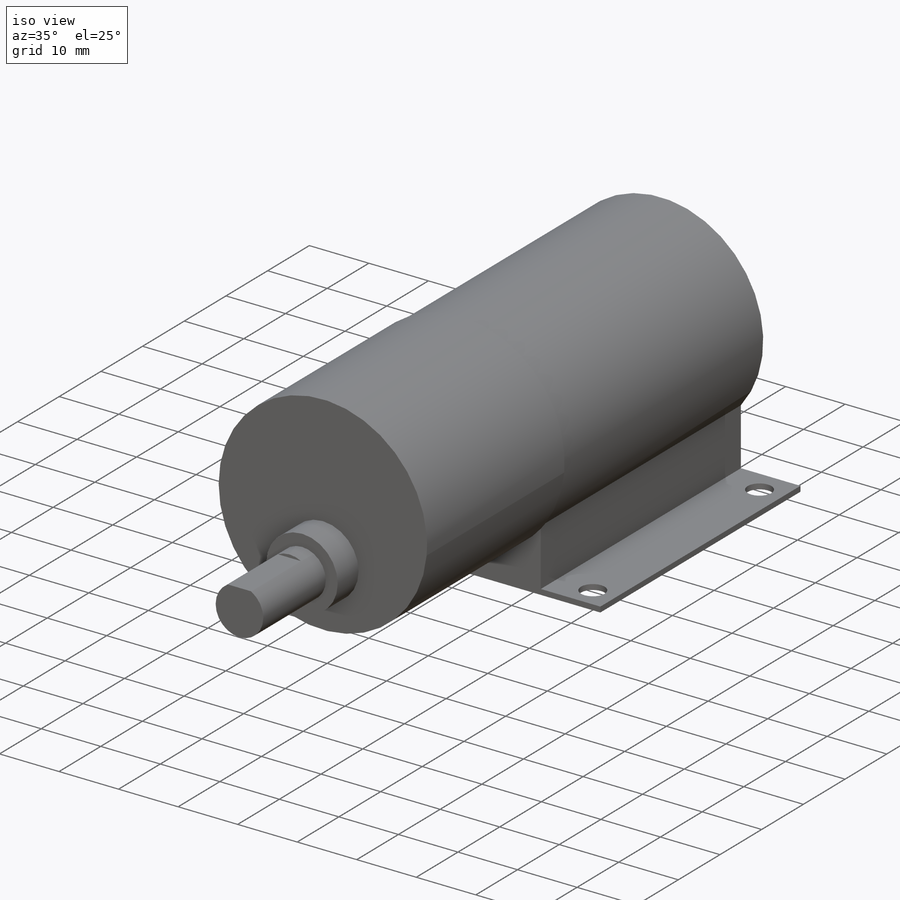
[diagram: iso view]
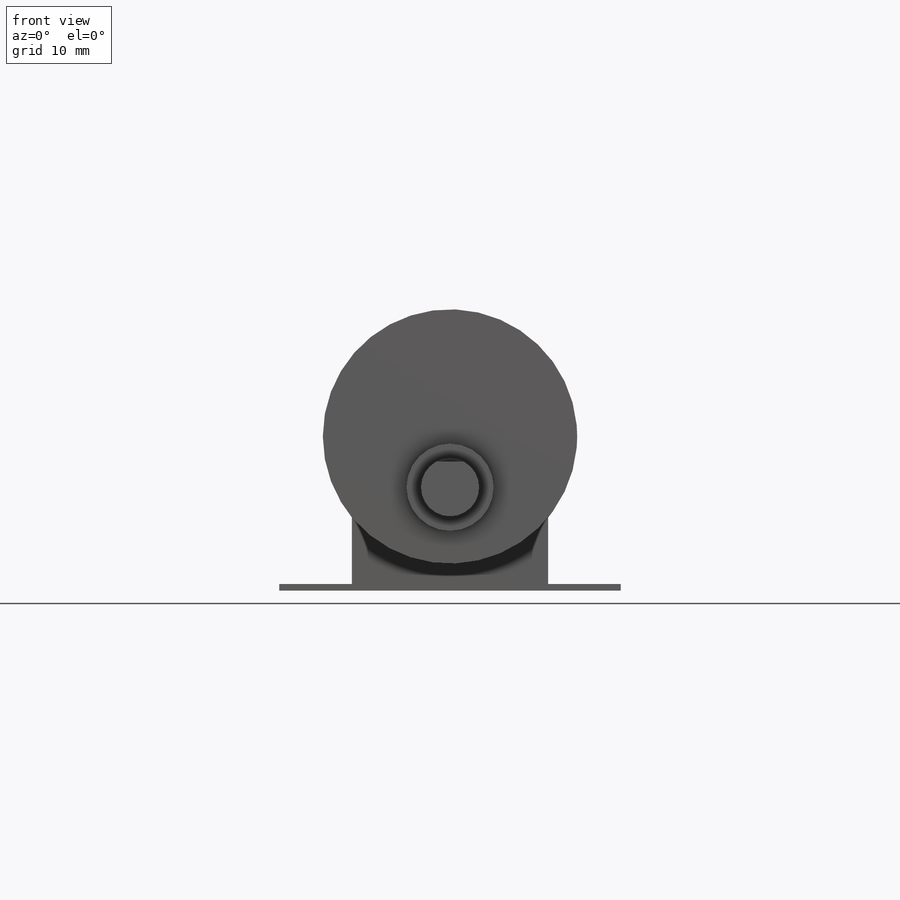
[diagram: front view]
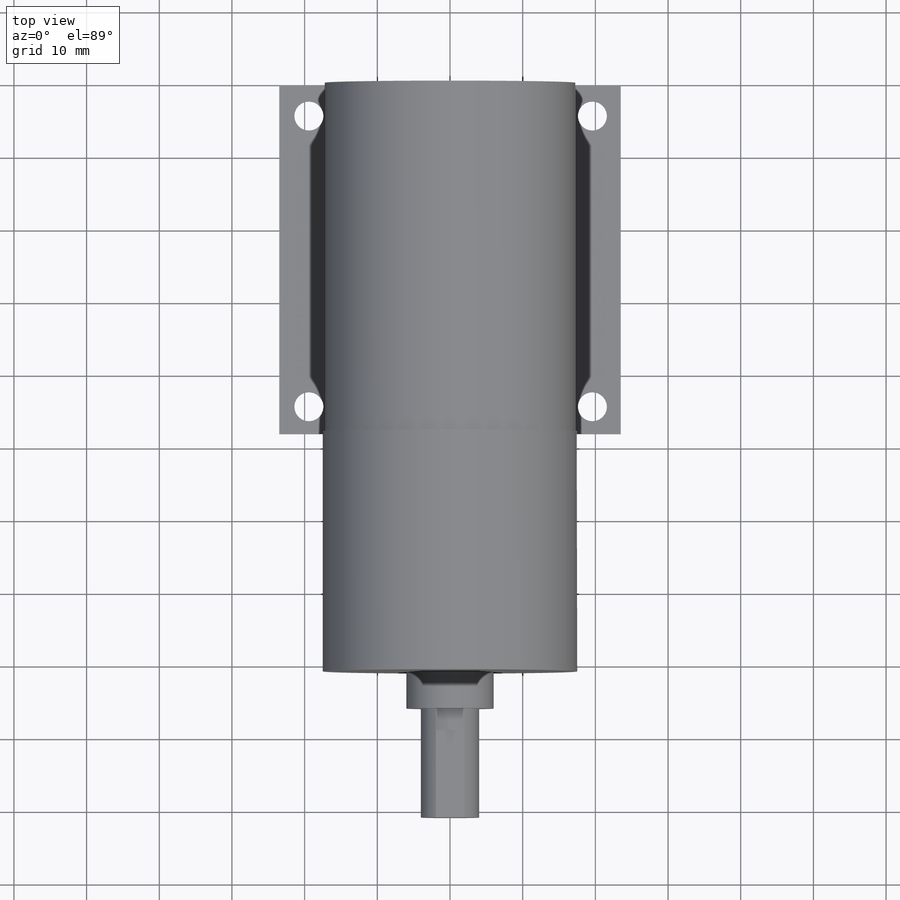
[diagram: top view]
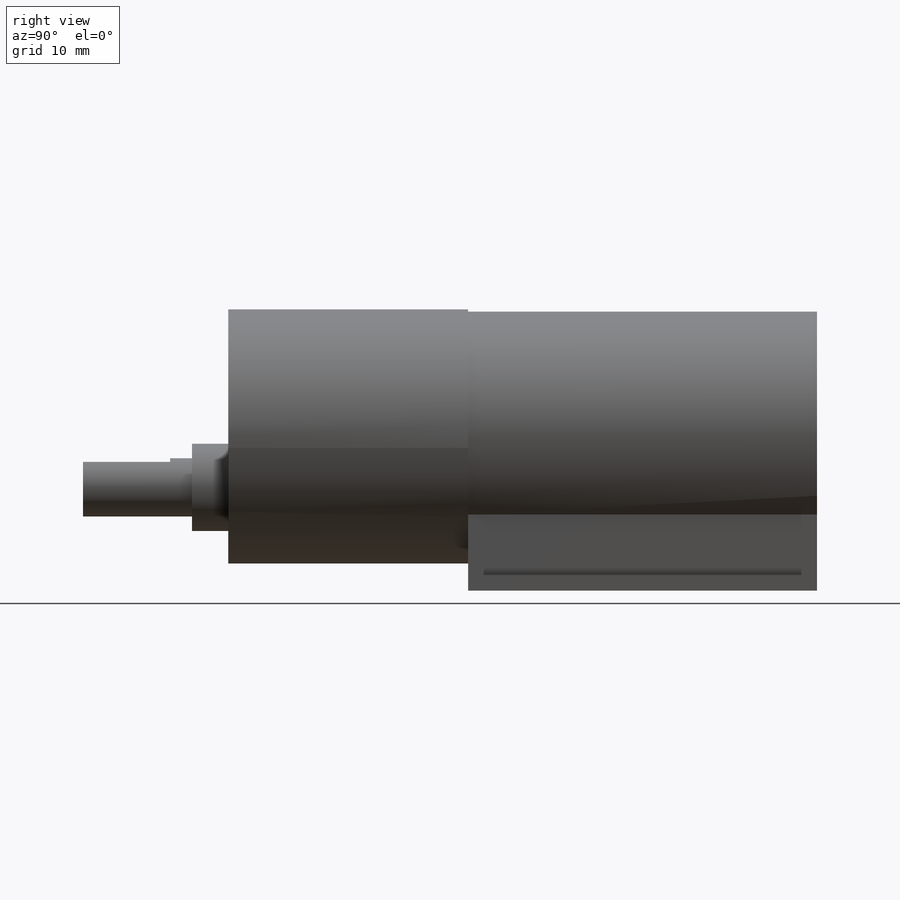
[diagram: right view]
SOLIDWORKS PART (.sldprt)
format: sldprt  version: not decoded by parser v0  size: 449,536 bytes
history: native  units: mm
features: sketch x7, cut_extrude x4, plane x3, extrude x3, material x1 (+13 scaffold rows collapsed)
feature tree (31):
  scaffold x13  (default folders/planes/origin — collapsed)
  material  "Matériau <non spécifié>"
  plane  "Plan de face"
  plane  "Plan de dessus"
  plane  "Plan de droite"
  sketch  "Esquisse1"  dims[c1.D1=17.25mm c1.D2=0.9mm c1.D3=14.0mm c1.D4=27.0mm c1.D5=47.0mm c1.D6=10.0mm c2.D3=21.2mm]
  extrude  "Extrusion1"  Depth=48mm
  sketch  "Esquisse2"  dims[D1=4.0mm D2=4.0mm D3=4.0mm D4=4.0mm D5=40.0mm D6=39.0mm]
  cut_extrude  "Extrusion2"  Depth=3mm
  sketch  "Esquisse3"  dims[D1=35.0mm]
  extrude  "Extrusion3"  Depth=33mm
  sketch  "Esquisse4"  dims[D2=12.0mm D1=7.0mm]
  extrude  "Extrusion4"  Depth=20mm
  sketch  "Esquisse5"  dims[D2=8.0mm D1=12.0mm]
  cut_extrude  "Extrusion6"  Depth=15mm
  sketch  "Esquisse6"  dims[D1=3.5mm]
  cut_extrude  "Extrusion7"  Depth=12mm
  sketch  "Esquisse8"
  cut_extrude  "Extrusion8"  Depth=0.1mm
decode coverage: 13 of 14 modeling features carry decoded parameters
note: suppression state not decoded; provenance and decode notes live in map.json
